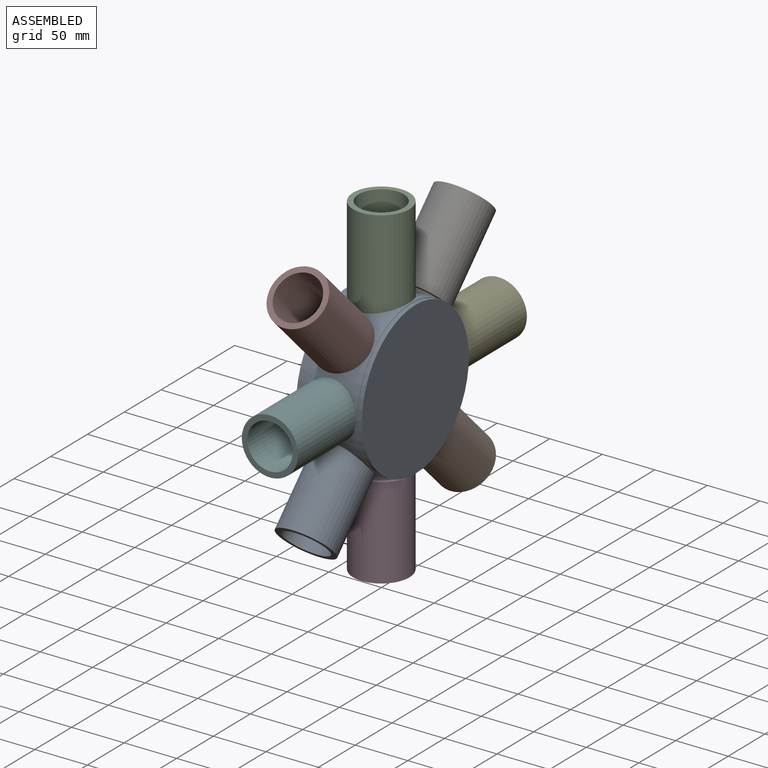
[diagram: assembled view]
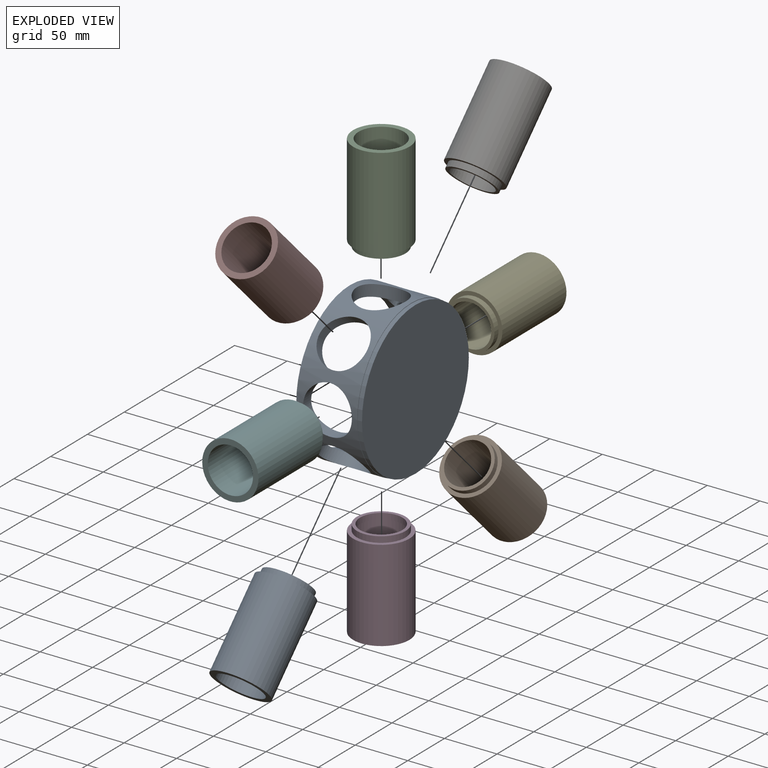
[diagram: exploded view]
GUIDED TOUR — MATED ASSEMBLY (Onshape document 361b42e6d32cf6fe3bd6ee8d, AutoMate assembly 361b42e6d32cf6fe3bd6ee8d_9aebd12817c0e030f7b2fef0_1f33b30c2f01f59a47943093_default)

This assembly has 9 components, labeled P0..P8 below (a component is one placed occurrence of a part; the same part can appear more than once), held together by 8 mates. A mate is a constraint between two components; its type names the relative motion it leaves free:
  CYLINDRICAL — leaves both rotation about and translation along the listed axis free.
Axis/direction vectors are unit vectors and 'through' points are millimeter coordinates, both in the assembly's world frame.

MATES
  1. CYLINDRICAL "Cylindrical 4": P3 <-> P8, axis (0.000, 0.000, -1.000) through (54.84, 121.32, -86.78) mm
  2. CYLINDRICAL "Cylindrical 2": P8 <-> P5, axis (0.000, 1.000, 0.000) through (54.84, 48.16, -10.54) mm
  3. CYLINDRICAL "Cylindrical 5": P0 <-> P8, axis (0.000, -0.707, -0.707) through (54.84, 80.52, -51.34) mm
  4. CYLINDRICAL "Cylindrical 3": P2 <-> P8, axis (0.000, 0.000, -1.000) through (54.84, 121.32, 55.71) mm
  5. CYLINDRICAL "Cylindrical 1": P4 <-> P8, axis (0.000, -1.000, 0.000) through (54.84, 193.97, -10.54) mm
  6. CYLINDRICAL "Cylindrical 6": P7 <-> P8, axis (0.000, 0.707, -0.707) through (54.84, 69.59, 41.19) mm
  7. CYLINDRICAL "Cylindrical 7": P1 <-> P8, axis (0.000, -0.707, 0.707) through (54.84, 173.04, -62.27) mm
  8. CYLINDRICAL "Cylindrical 8": P6 <-> P8, axis (0.000, -0.707, -0.707) through (54.84, 173.04, 41.19) mm

ASSEMBLY ORDER
  1. P8 — the base component [order heuristic]
  2. P0 — core [order heuristic]
  3. P2 — core [order heuristic]
  4. P5 — core [order heuristic]
  5. P6 [order verified]
  6. P1 [order verified]
  7. P4 [order verified]
  8. P3 [order verified]
  9. P7 [order verified]
(P1, P3, P4, P6, P7 verified with a relaxed clearance tolerance: the source model stores slight part interference there.)
Order-tag legend:
  [order verified] — this step's position reverses a verified removal order: the component was checked to insert without passing through the ones already placed.
  [order heuristic] — the first 4 components form the assembly's core: parts whose collision-free extraction could not be verified, listed in mate-graph order.

Of the 9 components, 1 carries the full construction recipe — the FeatureScript program that regenerates the part's solid from scratch; the rest are supplied as boundary geometry only.
Each toured component is shown spotlighted twice — in the assembled view, then in the exploded view, where a leader line traces a displaced component back to its assembled socket (saturated green if recipe-attached, orange if geometry-only; every other component desaturated gray) — followed by its recipe or geometry summary and the mates that hold it.
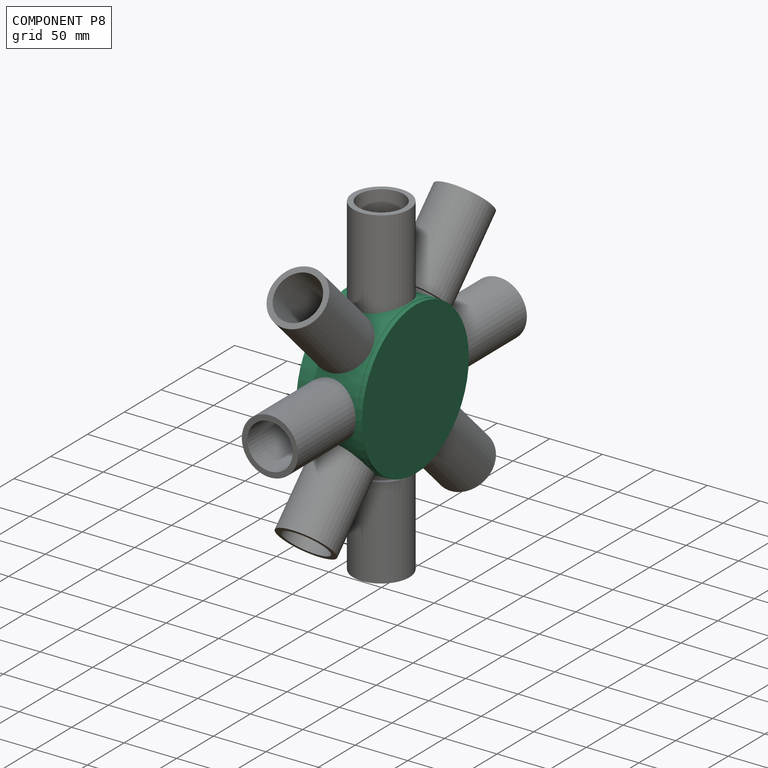
[diagram: component P8 — assembled]
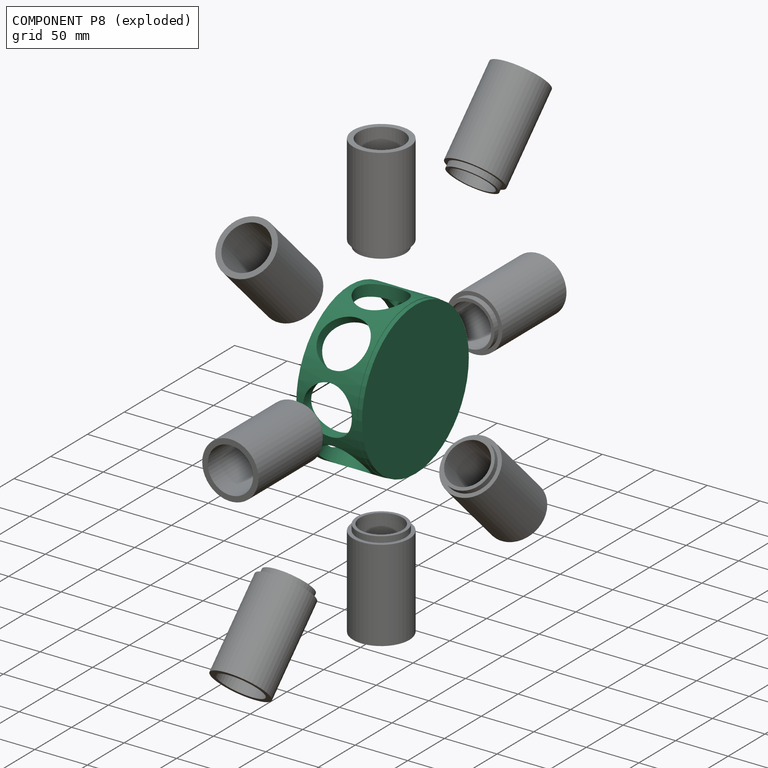
[diagram: component P8 — exploded]
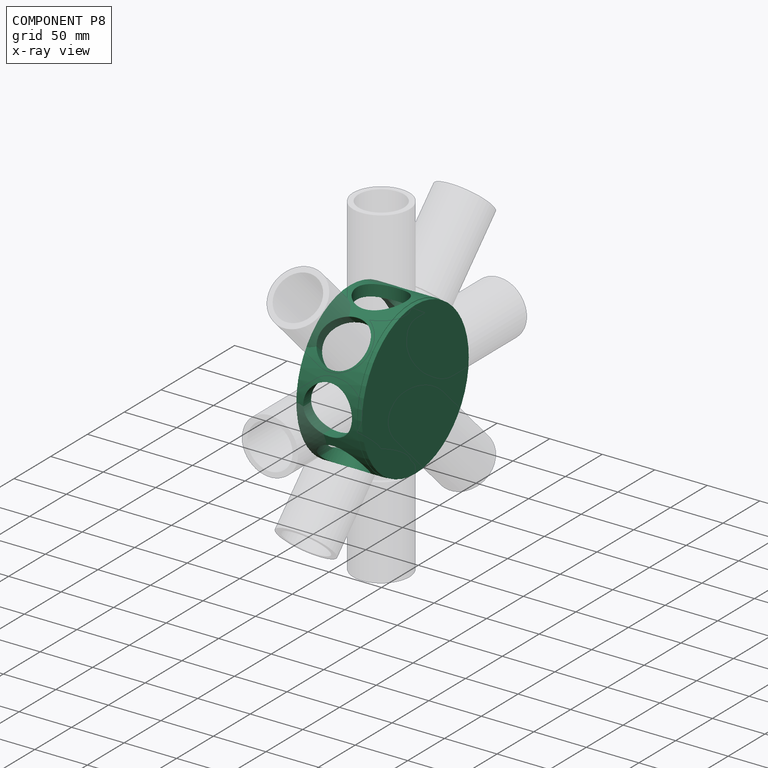
[diagram: component P8 — x-ray view]
COMPONENT P8 — recipe-attached (CADFS 00619893, mesh-verified: the recipe's output STEP matches this component's geometry to below the mesh-comparison resolution (tessellation chordal tolerance ~0.324 mm)).
Held by: CYLINDRICAL mate "Cylindrical 4" to P3; CYLINDRICAL mate "Cylindrical 2" to P5; CYLINDRICAL mate "Cylindrical 5" to P0; CYLINDRICAL mate "Cylindrical 3" to P2; CYLINDRICAL mate "Cylindrical 1" to P4; CYLINDRICAL mate "Cylindrical 6" to P7; CYLINDRICAL mate "Cylindrical 7" to P1; CYLINDRICAL mate "Cylindrical 8" to P6.
Construction recipe (FeatureScript — the CAD program that rebuilds this solid; sketch coordinates are in the units given by the * unit suffixes, e.g. mm):

FeatureScript 1511;
import(path : "onshape/std/geometry.fs", version : "1511.0");
import(path : "onshape/std/common.fs", version : "1511.0");
const mm = millimeter;
const VERTEX = EntityType.VERTEX;
const EDGE = EntityType.EDGE;
const FACE = EntityType.FACE;
const BODY = EntityType.BODY;
function v(x, y){return vector(x, y);}
function OD(order){return orderDisambiguation(order);}
function OSD(set){return originalSetDisambiguation(set);}
function TD(topology){return topologyDisambiguation(topology);}
function TDD(query){return trueDependencyDisambiguation(query);}
function sQuery(a, b, c) {return sketchEntityQuery(a, b, c);}

annotation { "Feature Type Name" : "Feature", "Feature Type Description" : "" }
export const myFeature = defineFeature(function(context is Context, id is Id, definition is map)
    precondition{}
    {
        {
            var Q0;
            Q0=qCreatedBy(makeId("Front.planeOp"),FACE);
            var sketch = newSketch(context, id + "F0", { "sketchPlane" : qUnion([Q0])});
            skCircle(sketch, "E0", {"center": v(0, 0) * mm, "radius": 62.28 * mm});
            skCircle(sketch, "E1", {"center": v(0, 0) * mm, "radius": 73.02 * mm});
            skSolve(sketch);
        }
        {
            var Q0;
            Q0 = qSketchRegion(id + "F0", true);
            extrude(context, id + "F1", {"entities" : qUnion([Q0]), "depth" : 58.1 * mm, "offsetDistance" : 25.4 * mm});
        }
        {
            var Q0;
            Q0=qCreatedBy(makeId("Front.planeOp"),FACE);
            var sketch = newSketch(context, id + "F2", { "sketchPlane" : qUnion([Q0])});
            skCircle(sketch, "E2", {"center": v(0, 0) * mm, "radius": 72.61 * mm});
            skSolve(sketch);
        }
        {
            var Q0;
            Q0 = qSketchRegion(id + "F2", true);
            extrude(context, id + "F3", {"entities" : qUnion([Q0]), "operationType" : NewBodyOperationType.ADD, "oppositeDirection" : true, "depth" : 4.2 * mm, "offsetDistance" : 25.4 * mm});
        }
        {
            var Q0;
            Q0=qCreatedBy(makeId("Right.planeOp"),FACE);
            var sketch = newSketch(context, id + "F4", { "sketchPlane" : qUnion([Q0])});
            skCircle(sketch, "E3", {"center": v(-28.34, 0) * mm, "radius": 23.13 * mm});
            skSolve(sketch);
        }
        {
            var Q0;
            Q0 = qSketchRegion(id + "F4", true);
            extrude(context, id + "F5", {"entities" : qUnion([Q0]), "operationType" : NewBodyOperationType.REMOVE, "oppositeDirection" : true, "depth" : 203.13 * mm, "offsetDistance" : 25.4 * mm});
        }
        {
            var Q0;
            Q0=makeQuery(id+"F5.boolean.opBoolean","COPY",FACE,{"derivedFrom":makeQuery(id+"F5.opExtrude","SWEPT_FACE",FACE,{"disambiguationData":[OSD([sQuery(id+"F4.wireOp",EDGE,"E3")])]})});
            var Q1;
            Q1=makeQuery(id+"F1.opExtrude","CAP_EDGE",EDGE,{"disambiguationData":[OSD([sQuery(id+"F0.wireOp",EDGE,"E0")])],"isStart":false});
            circularPattern(context, id + "F6", {"patternType" : PatternType.FACE, "faces" : qUnion([Q0]), "axis" : qUnion([Q1]), "angle" : 360 * degree, "instanceCount" : 8, "equalSpace" : true});
        }
    });
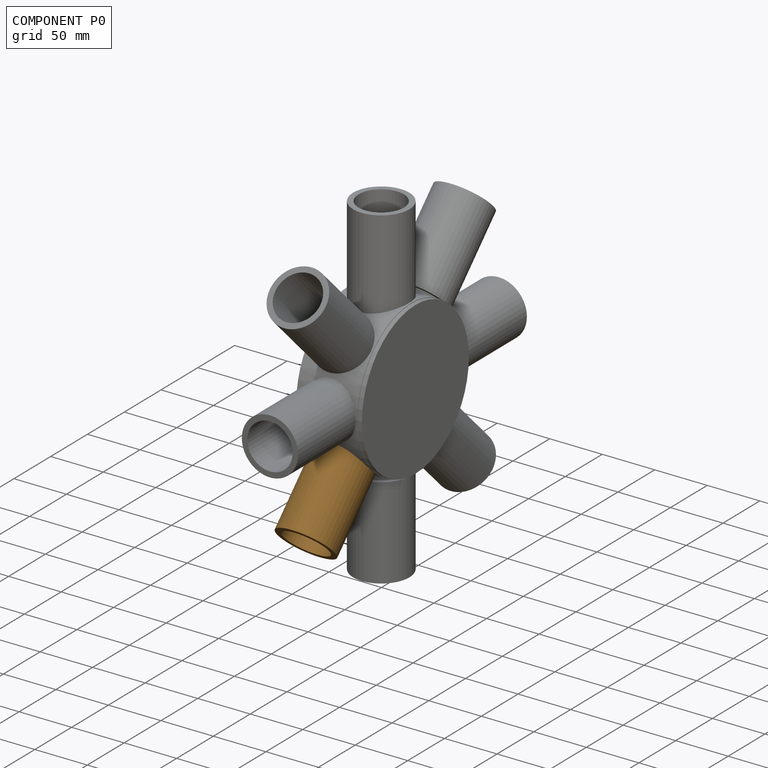
[diagram: component P0 — assembled]
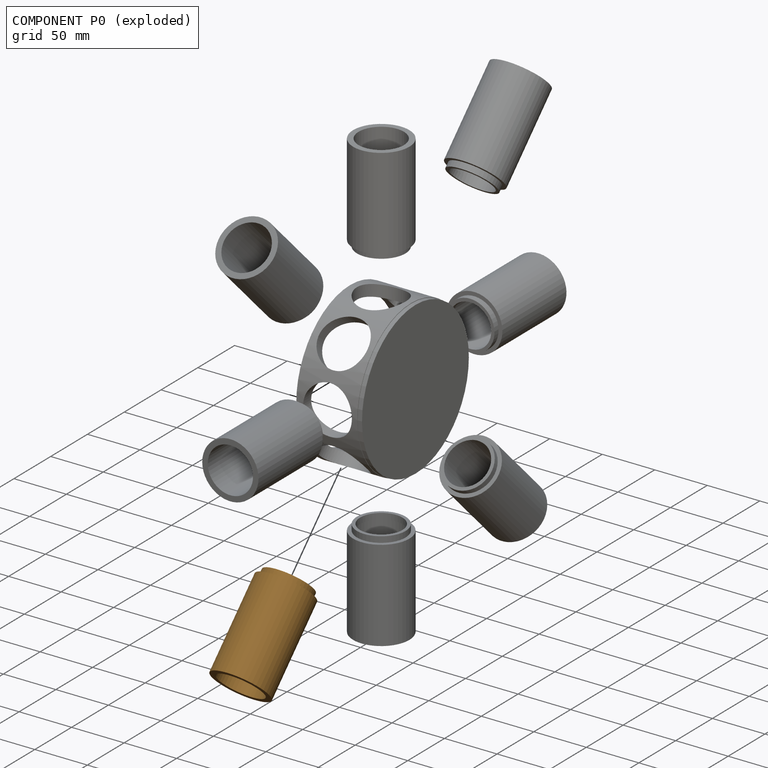
[diagram: component P0 — exploded]
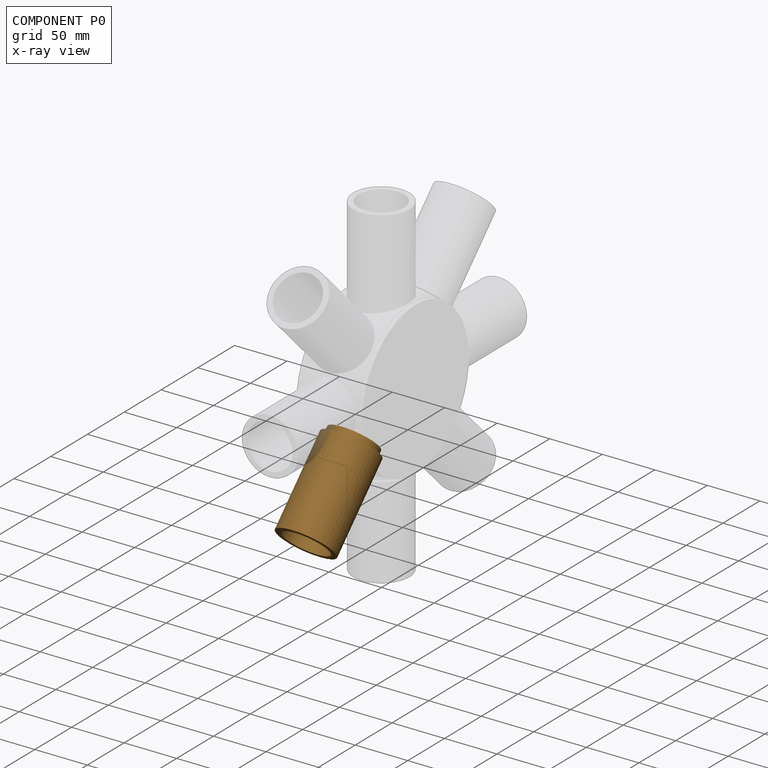
[diagram: component P0 — x-ray view]
COMPONENT P0 — geometry summary (no construction recipe available for this part):
  bounding box: 92.8 x 53.6 x 53.6 mm
  B-rep topology: 1 solid, 8 faces, 24 edges
  volume: 71419 mm^3 (27% of its bounding box)
  symmetry: revolution-symmetric about the y axis through its bounding-box center; mirror-symmetric across its x mid-plane, z mid-plane
Held by: CYLINDRICAL mate "Cylindrical 5" to P8.
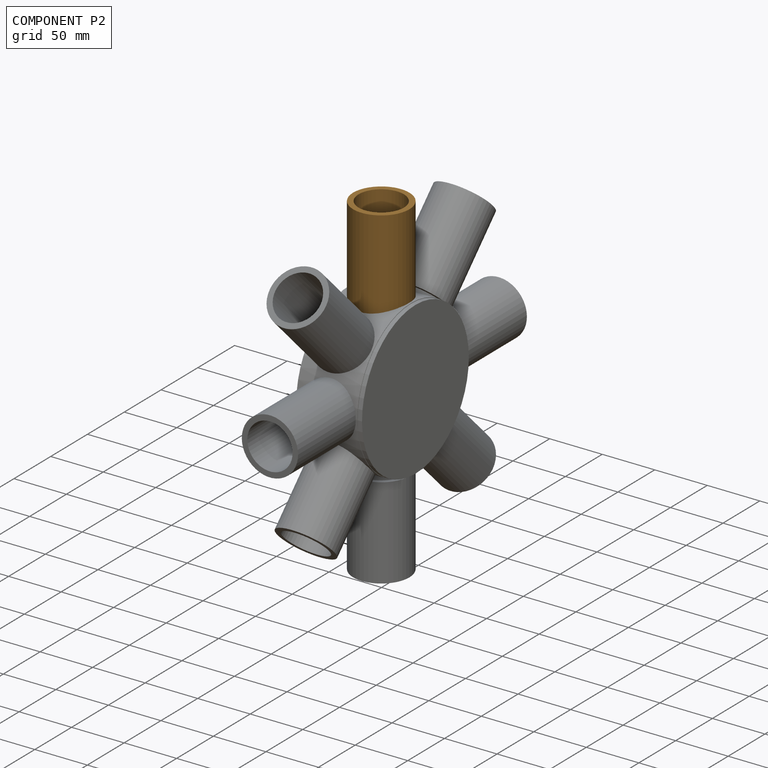
[diagram: component P2 — assembled]
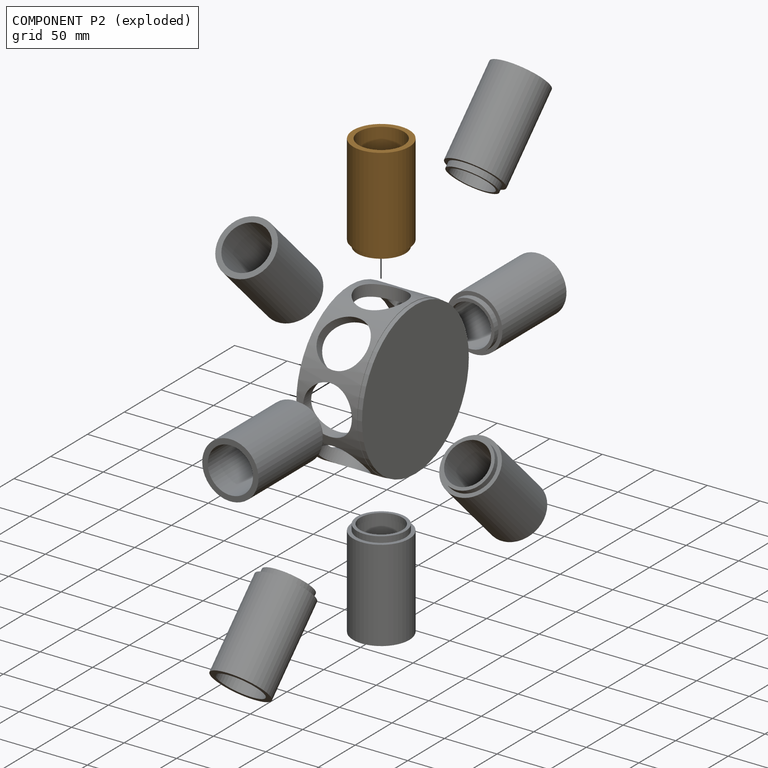
[diagram: component P2 — exploded]
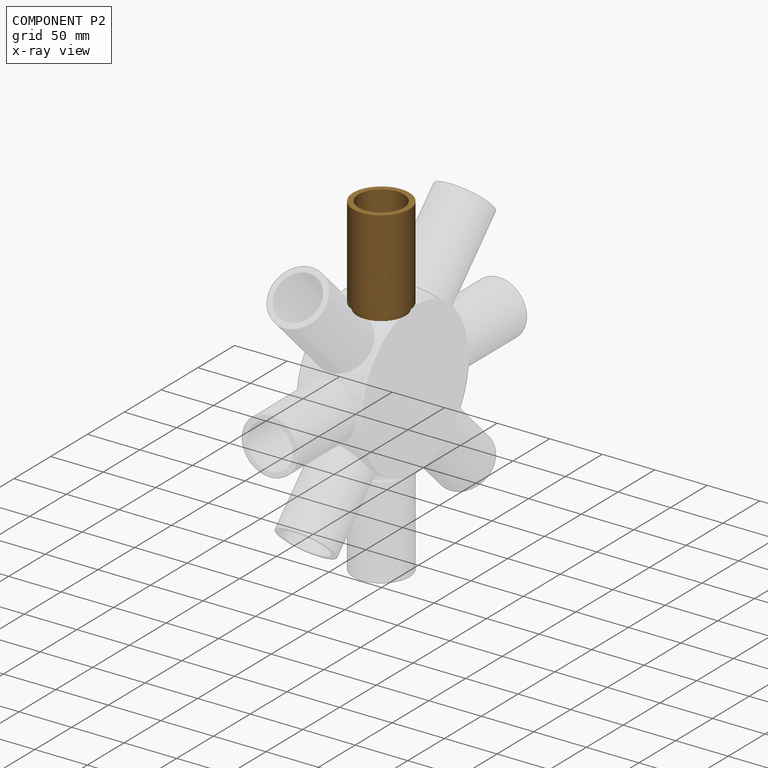
[diagram: component P2 — x-ray view]
COMPONENT P2 — geometry summary (no construction recipe available for this part):
  bounding box: 92.8 x 53.6 x 53.6 mm
  B-rep topology: 1 solid, 8 faces, 24 edges
  volume: 71419 mm^3 (27% of its bounding box)
  symmetry: revolution-symmetric about the y axis through its bounding-box center; mirror-symmetric across its x mid-plane, z mid-plane
Held by: CYLINDRICAL mate "Cylindrical 3" to P8.
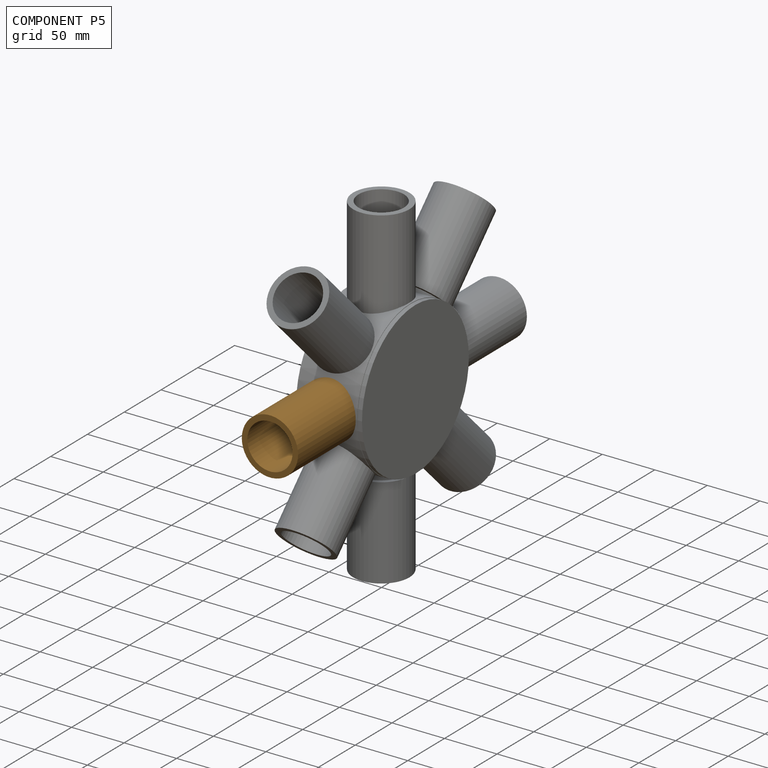
[diagram: component P5 — assembled]
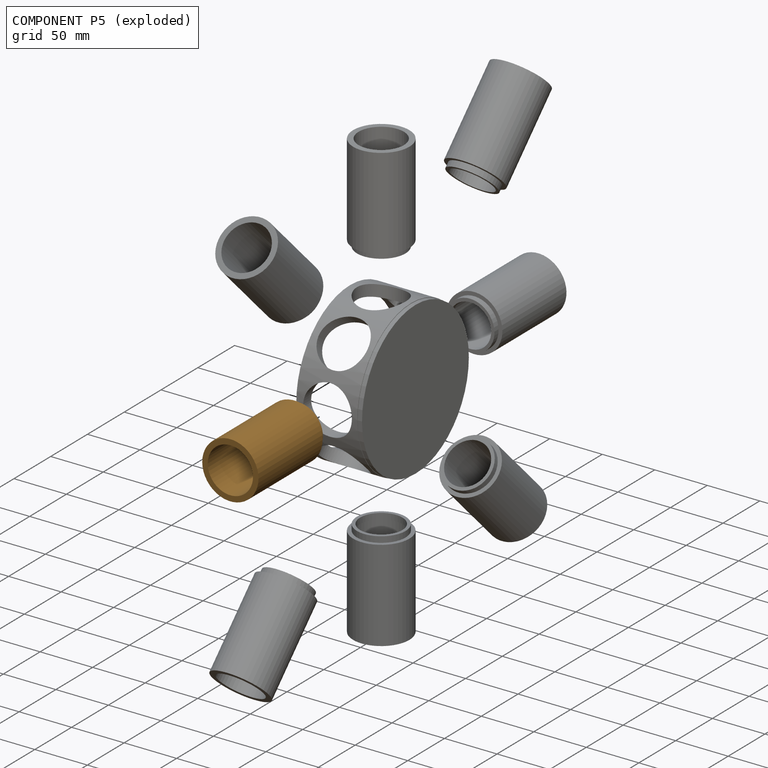
[diagram: component P5 — exploded]
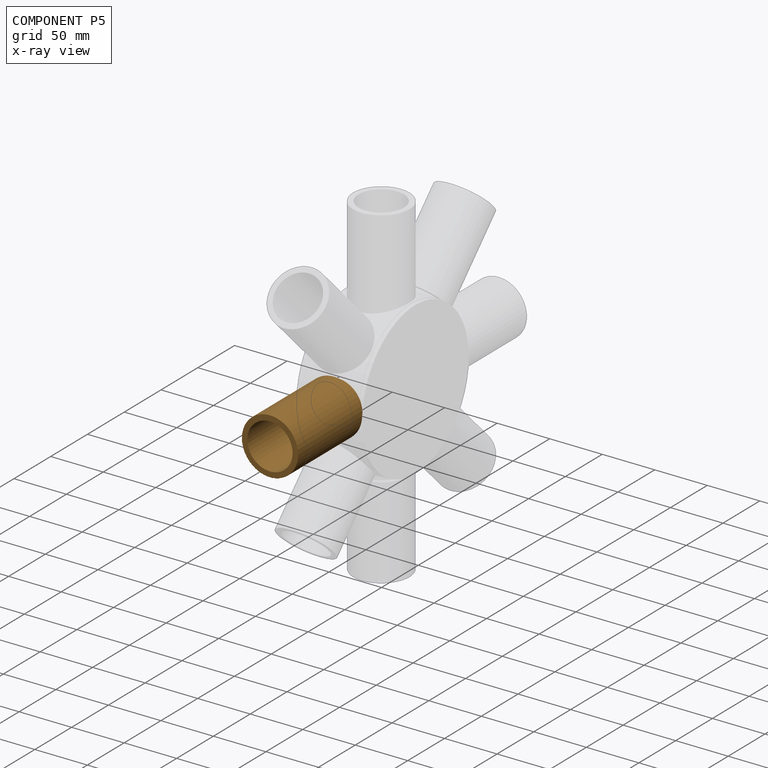
[diagram: component P5 — x-ray view]
COMPONENT P5 — geometry summary (no construction recipe available for this part):
  bounding box: 92.8 x 53.6 x 53.6 mm
  B-rep topology: 1 solid, 8 faces, 24 edges
  volume: 71419 mm^3 (27% of its bounding box)
  symmetry: revolution-symmetric about the y axis through its bounding-box center; mirror-symmetric across its x mid-plane, z mid-plane
Held by: CYLINDRICAL mate "Cylindrical 2" to P8.
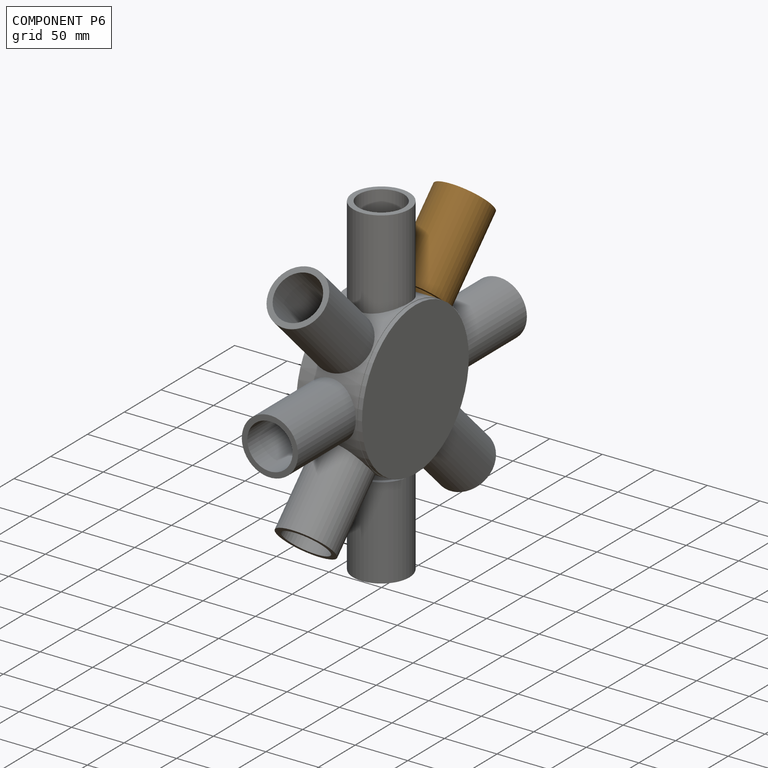
[diagram: component P6 — assembled]
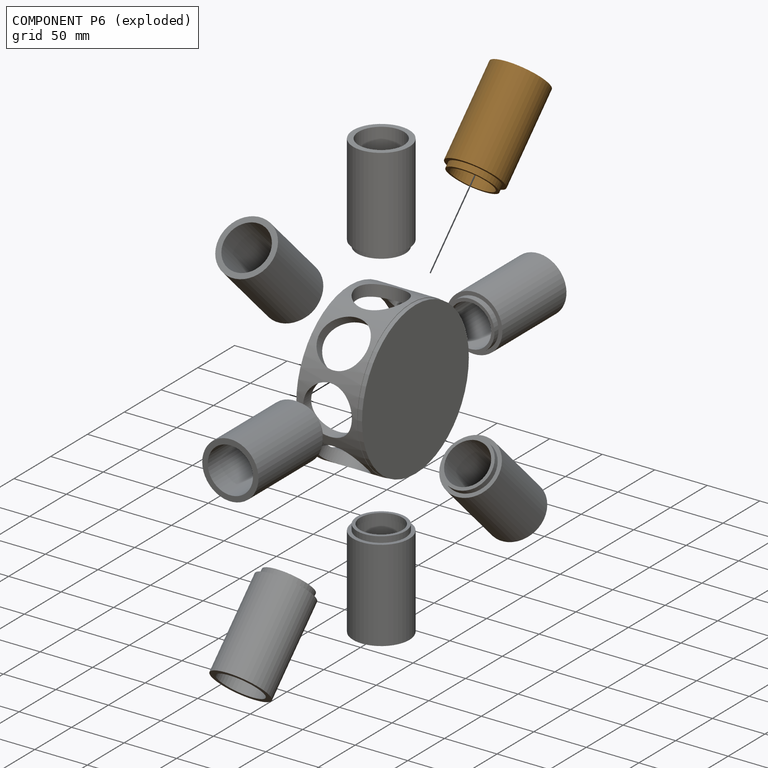
[diagram: component P6 — exploded]
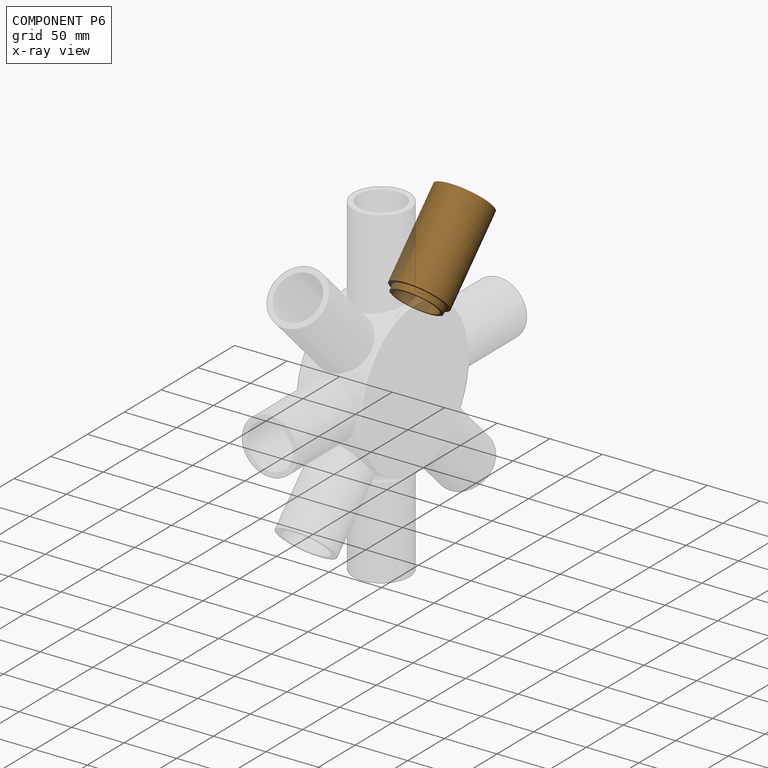
[diagram: component P6 — x-ray view]
COMPONENT P6 — geometry summary (no construction recipe available for this part):
  bounding box: 92.8 x 53.6 x 53.6 mm
  B-rep topology: 1 solid, 8 faces, 24 edges
  volume: 71419 mm^3 (27% of its bounding box)
  symmetry: revolution-symmetric about the y axis through its bounding-box center; mirror-symmetric across its x mid-plane, z mid-plane
Held by: CYLINDRICAL mate "Cylindrical 8" to P8.
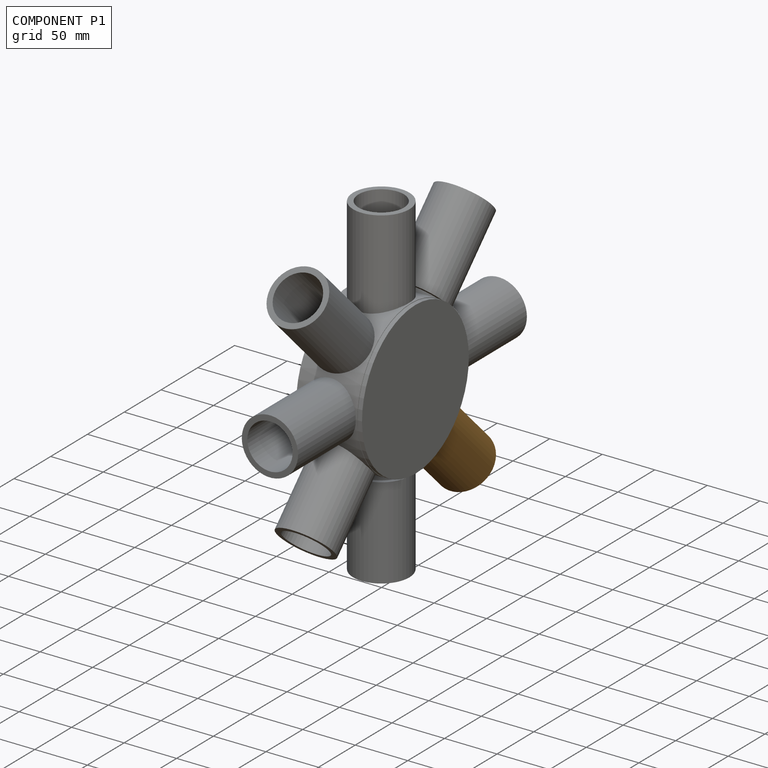
[diagram: component P1 — assembled]
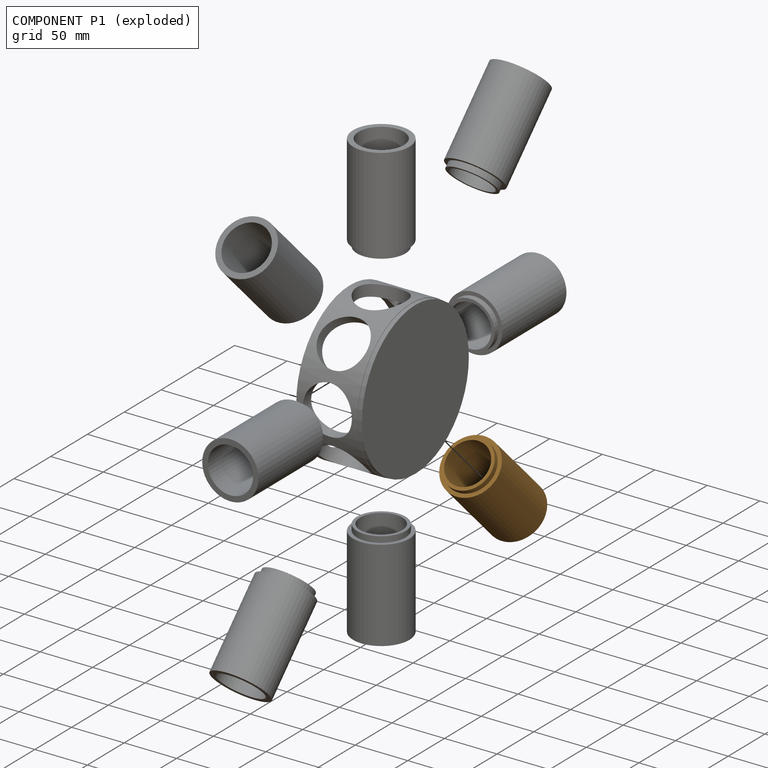
[diagram: component P1 — exploded]
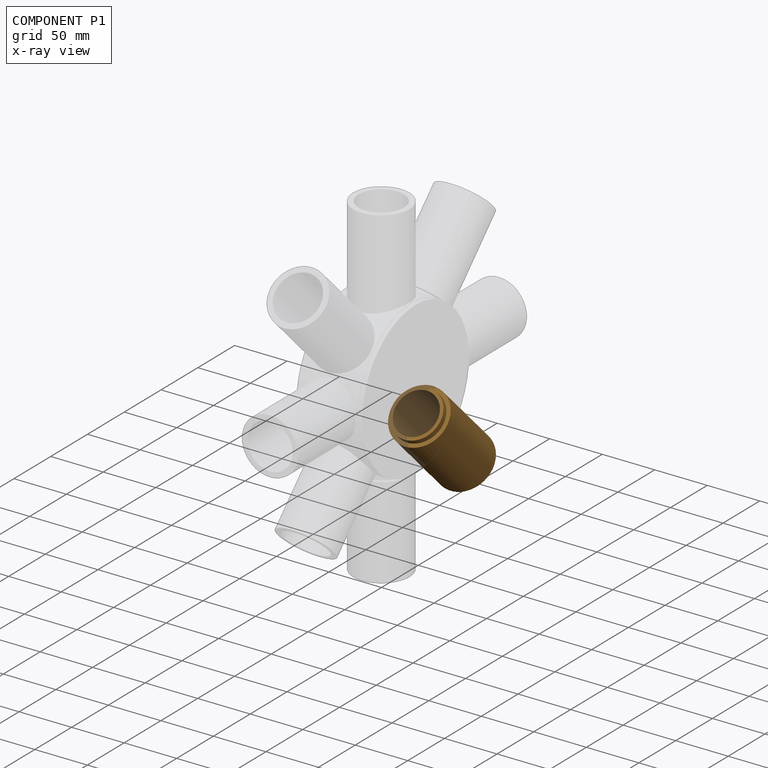
[diagram: component P1 — x-ray view]
COMPONENT P1 — geometry summary (no construction recipe available for this part):
  bounding box: 92.8 x 53.6 x 53.6 mm
  B-rep topology: 1 solid, 8 faces, 24 edges
  volume: 71419 mm^3 (27% of its bounding box)
  symmetry: revolution-symmetric about the y axis through its bounding-box center; mirror-symmetric across its x mid-plane, z mid-plane
Held by: CYLINDRICAL mate "Cylindrical 7" to P8.
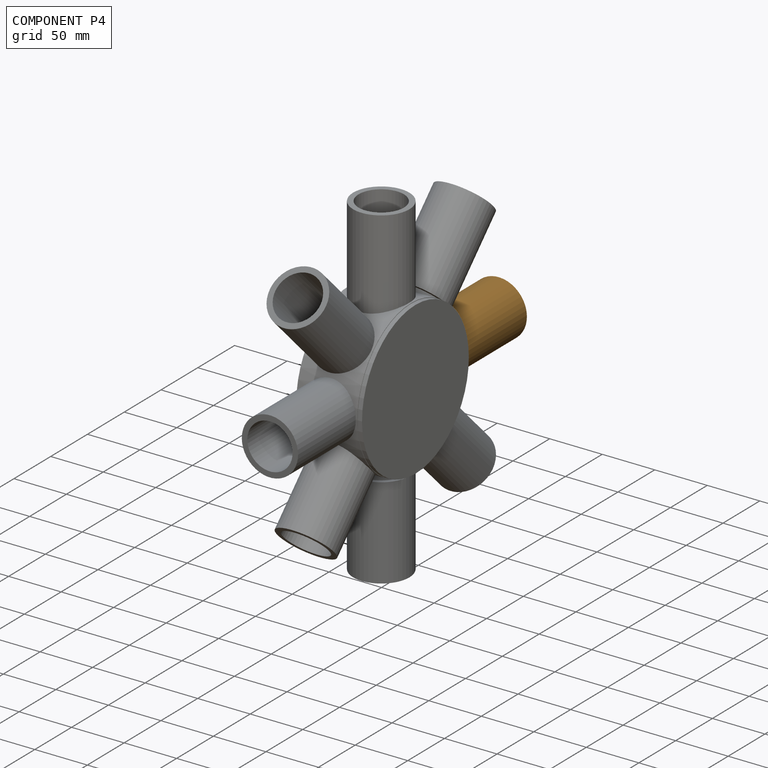
[diagram: component P4 — assembled]
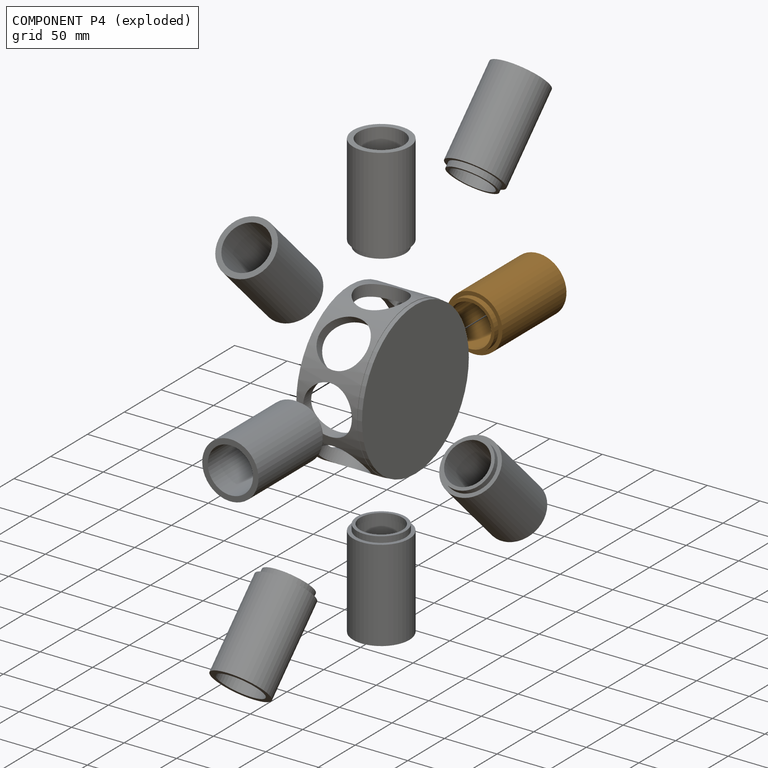
[diagram: component P4 — exploded]
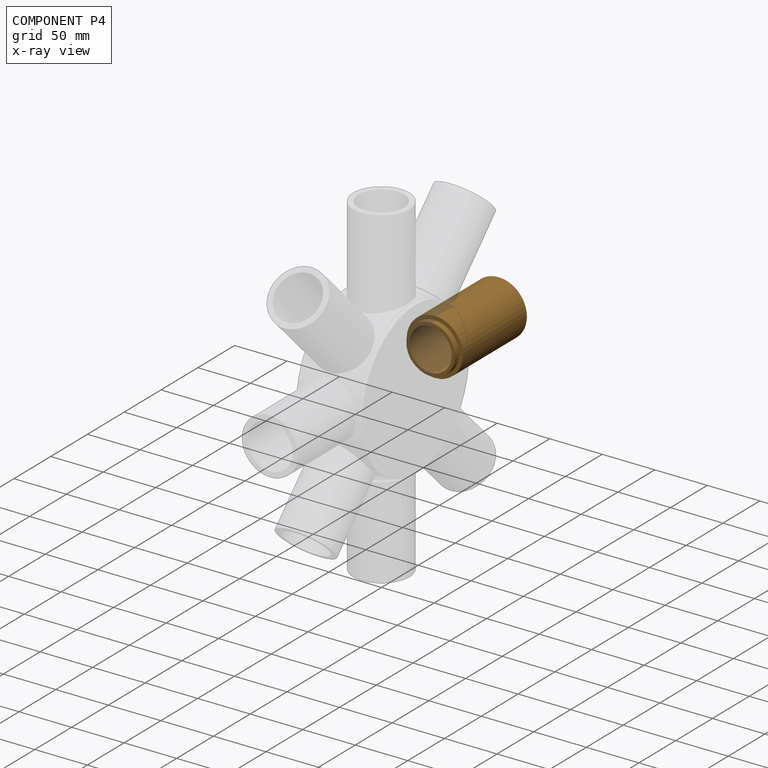
[diagram: component P4 — x-ray view]
COMPONENT P4 — geometry summary (no construction recipe available for this part):
  bounding box: 92.8 x 53.6 x 53.6 mm
  B-rep topology: 1 solid, 8 faces, 24 edges
  volume: 71419 mm^3 (27% of its bounding box)
  symmetry: revolution-symmetric about the y axis through its bounding-box center; mirror-symmetric across its x mid-plane, z mid-plane
Held by: CYLINDRICAL mate "Cylindrical 1" to P8.
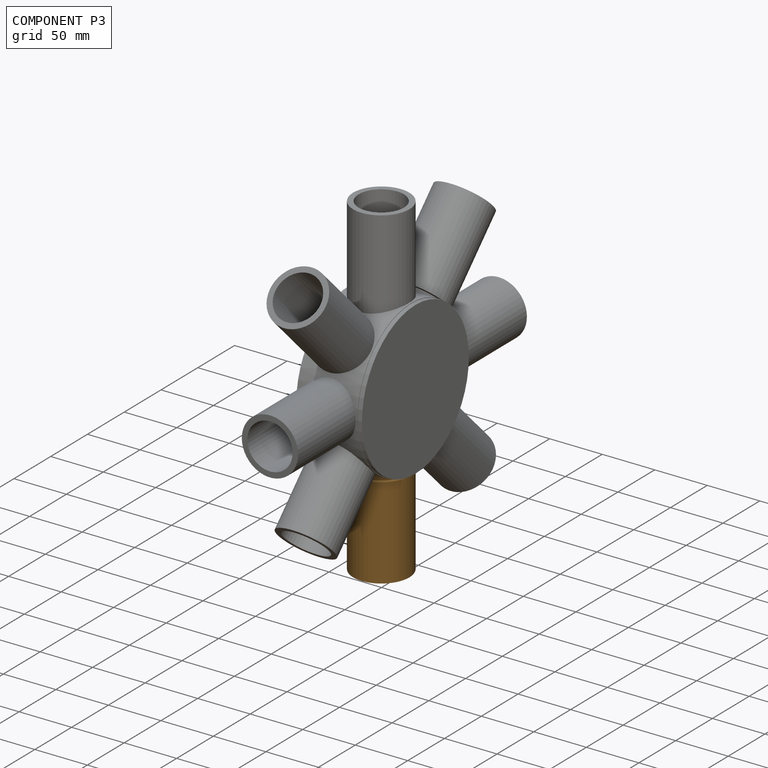
[diagram: component P3 — assembled]
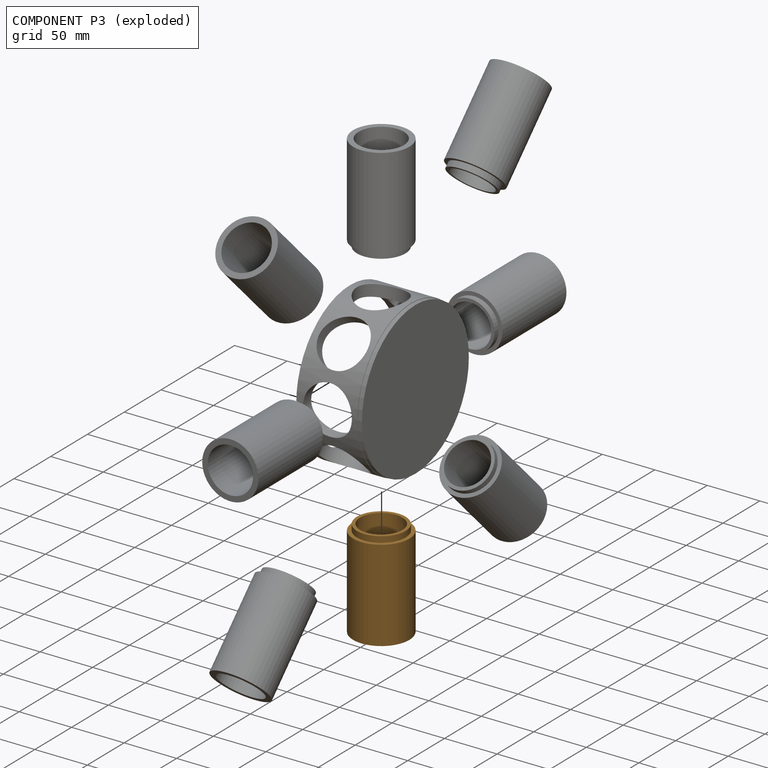
[diagram: component P3 — exploded]
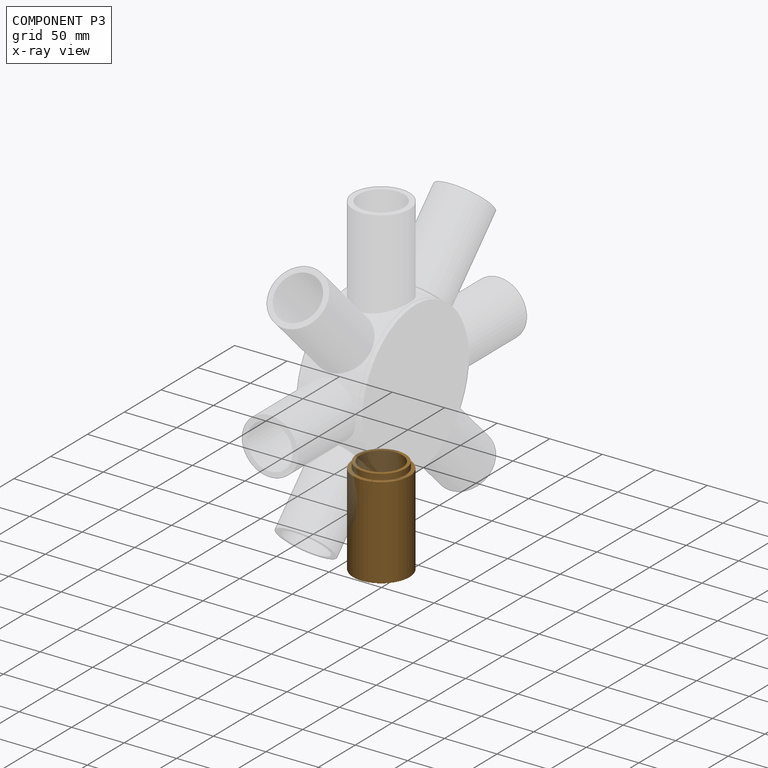
[diagram: component P3 — x-ray view]
COMPONENT P3 — geometry summary (no construction recipe available for this part):
  bounding box: 92.8 x 53.6 x 53.6 mm
  B-rep topology: 1 solid, 8 faces, 24 edges
  volume: 71419 mm^3 (27% of its bounding box)
  symmetry: revolution-symmetric about the y axis through its bounding-box center; mirror-symmetric across its x mid-plane, z mid-plane
Held by: CYLINDRICAL mate "Cylindrical 4" to P8.
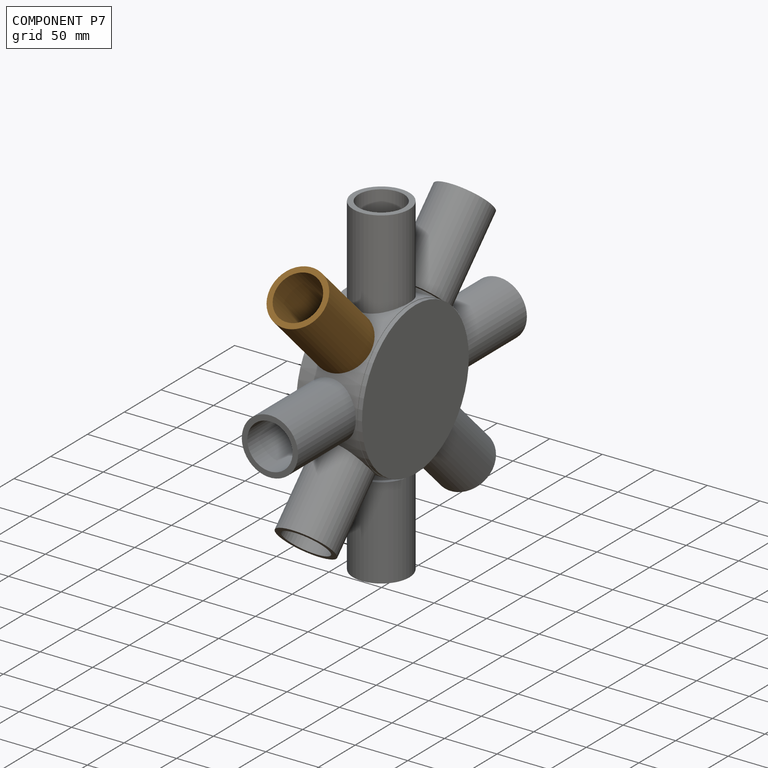
[diagram: component P7 — assembled]
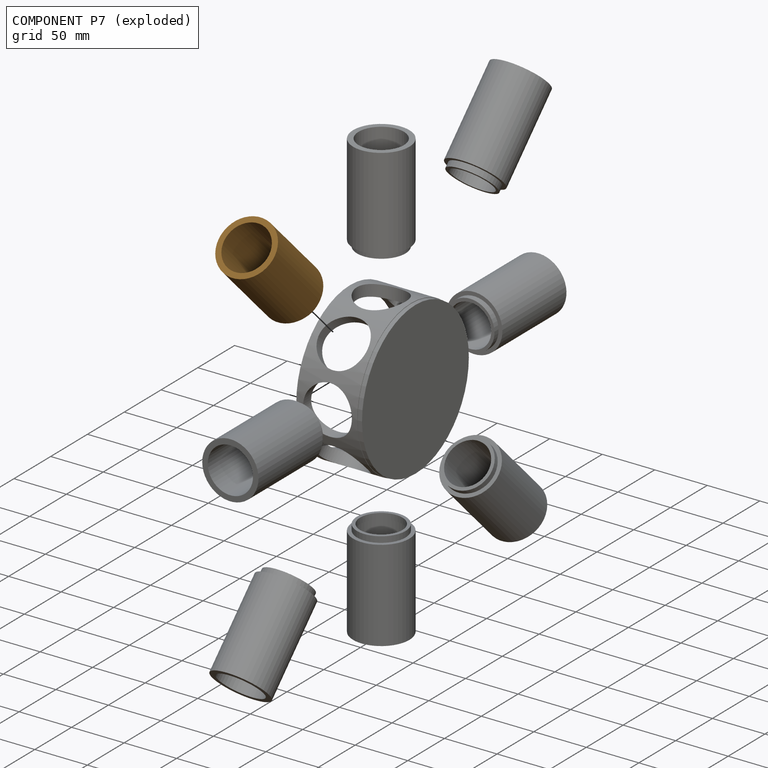
[diagram: component P7 — exploded]
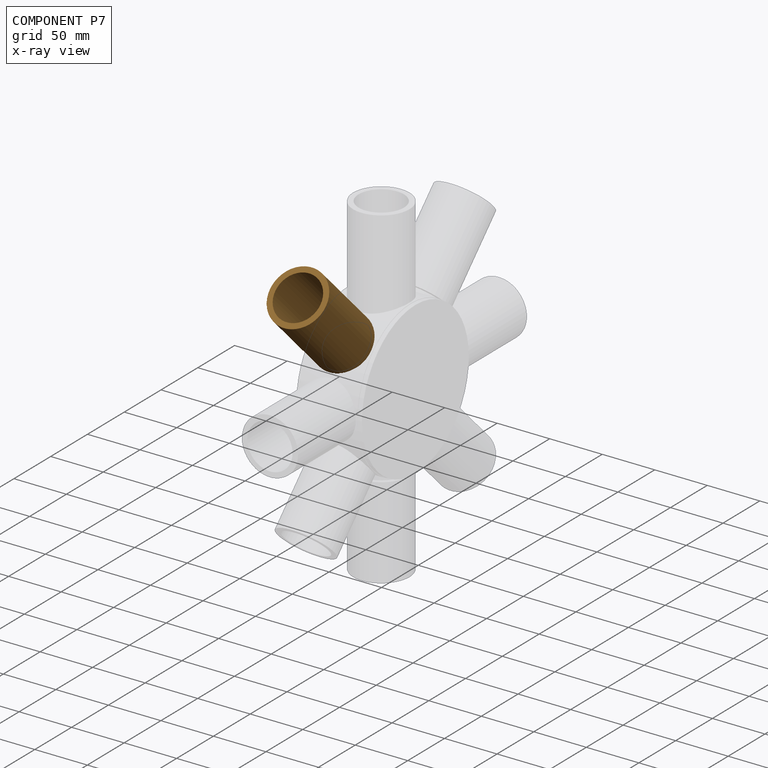
[diagram: component P7 — x-ray view]
COMPONENT P7 — geometry summary (no construction recipe available for this part):
  bounding box: 92.8 x 53.6 x 53.6 mm
  B-rep topology: 1 solid, 8 faces, 24 edges
  volume: 71419 mm^3 (27% of its bounding box)
  symmetry: revolution-symmetric about the y axis through its bounding-box center; mirror-symmetric across its x mid-plane, z mid-plane
Held by: CYLINDRICAL mate "Cylindrical 6" to P8.
PROVENANCE & LICENSES
Assembly (occurrences, transforms, mates, per-part STEP geometry): AutoMate dataset, Zenodo record 7776208, CC0.
Construction recipes: CADFS (HuggingFace VladPyatov/CADFS, CC-BY-4.0, layered over the ABC dataset), FeatureScript reconstruction programs keyed by ABC model id.
Join: ABC meta listings map ABC model id -> Onshape documentId; within a shared document, parts are matched by geometric signature (bounding-box dims + volume at 0.1% relative tolerance, exact B-rep face/solid counts).
Verification: 1 of this assembly's 9 components carries a recipe attachment, and every attachment is mesh-verified: the CADFS STEP and the AutoMate member STEP were compared as meshes in their shared local frame (symmetric sampled-point-to-mesh distance); worst across the 1 attachment: below the mesh-comparison resolution (tessellation chordal tolerance ~0.324 mm) on a 216 mm part.
Renders: orthographic iso camera (az 35 / el 25); the floor grid conveys scale (grid pitch printed in each image; no ruler). In the exploded view each component is displaced by its stored offset vector: the offsets alone carry the explosion direction (mate normal/axis signs are not orientation cues and do not encode it), and separation distances are assigned per mate-chain, not proportionally to assembly-order depth.
